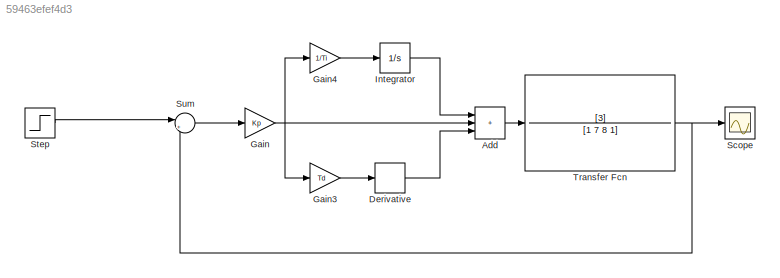
MODEL slx_59463efef4d3
KIND model
CONFIG AbsTol = auto
CONFIG EnableMultiTasking = off
CONFIG FixedStep = auto
CONFIG MaxStep = 0.01
CONFIG MinStep = auto
CONFIG RelTol = 1e-3
CONFIG SampleTimeConstraint = Unconstrained
CONFIG SolverName = VariableStepAuto
CONFIG StartTime = 0.0
CONFIG StopTime = 30
BLOCK [Sum] Add
  IconShape = rectangular
  Inputs = +++
BLOCK [Derivative] Derivative
BLOCK [Gain] Gain
  Gain = Kp
BLOCK [Gain] Gain3
  Gain = Td
BLOCK [Gain] Gain4
  Gain = 1/Ti
BLOCK [Integrator] Integrator
BLOCK [Scope] Scope
  Floating = off
  NumInputPorts = 1
  ScopeSpecificationString = Simulink.scopes.TimeScopeBlockCfg('CurrentConfiguration', extmgr.ConfigurationSet(extmgr.Configuration('Core','General UI',true,'FigureColor',[1 1 1]),extmgr.Configuration('Core','Source UI',true),extmgr.Configuration('Sources','WiredSimulink',true),extmgr.Configuration('Visuals','Time Domain',true,'SerializedDisplays',{struct('MinYLimReal','-0.17861','MaxYLimReal','1.60751','YLabelReal','','MinYL...<+1639ch>
BLOCK [Step] Step
  SampleTime = 0
BLOCK [Sum] Sum
  Inputs = |+-
BLOCK [TransferFcn] Transfer Fcn
  Denominator = [1 7 8 1]
  Numerator = [3]
LINE Add:1 -> Transfer Fcn:1
LINE Derivative:1 -> Add:3
LINE Gain3:1 -> Derivative:1
LINE Gain4:1 -> Integrator:1
NET Gain:1 -> Add:2, Gain3:1, Gain4:1
LINE Integrator:1 -> Add:1
LINE Step:1 -> Sum:1
LINE Sum:1 -> Gain:1
NET Transfer Fcn:1 -> Scope:1, Sum:2
note: NET lines group one-source signal fan-out (src -> all destinations, sorted); 1:1 wires keep LINE
